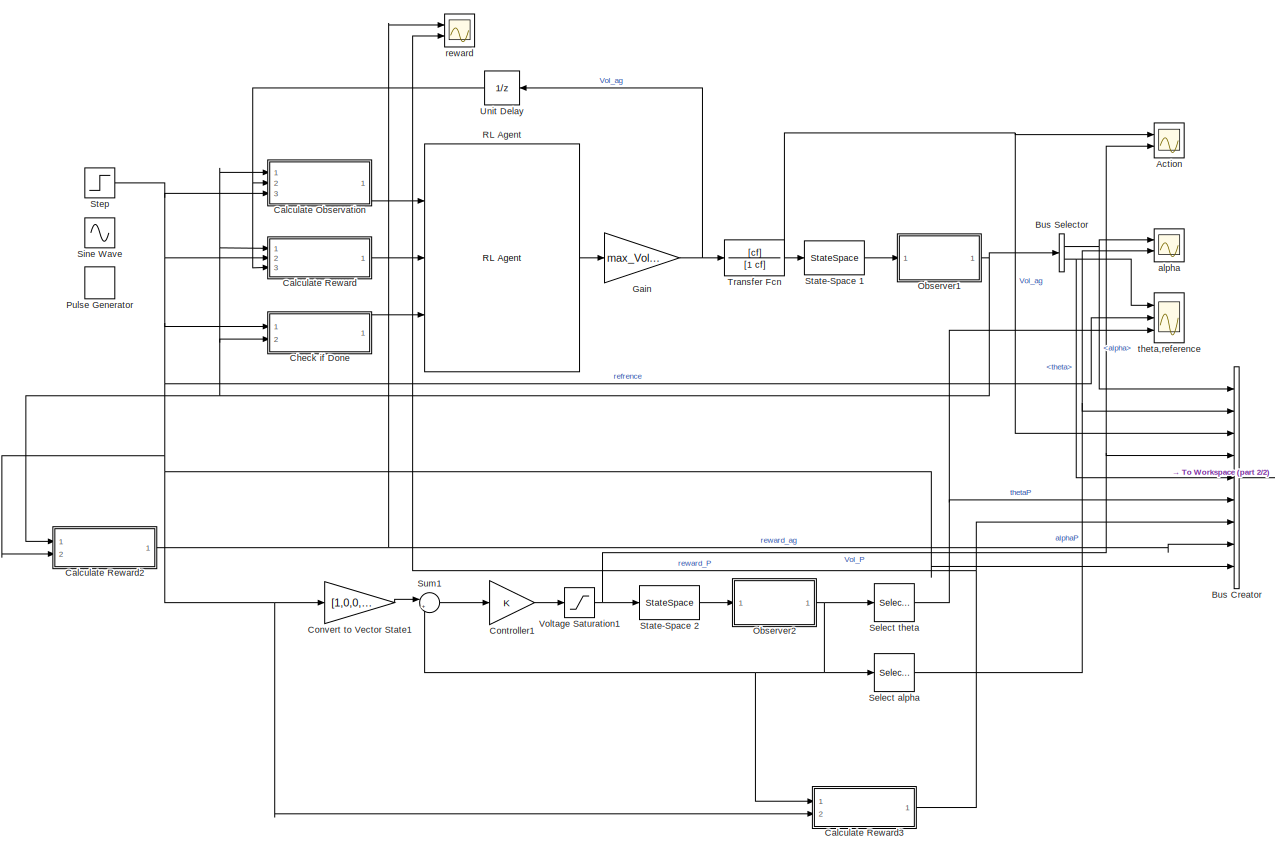
[diagram: root canvas - part 1/2, most of the canvas]
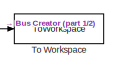
[diagram: root canvas - part 2/2, middle right region]
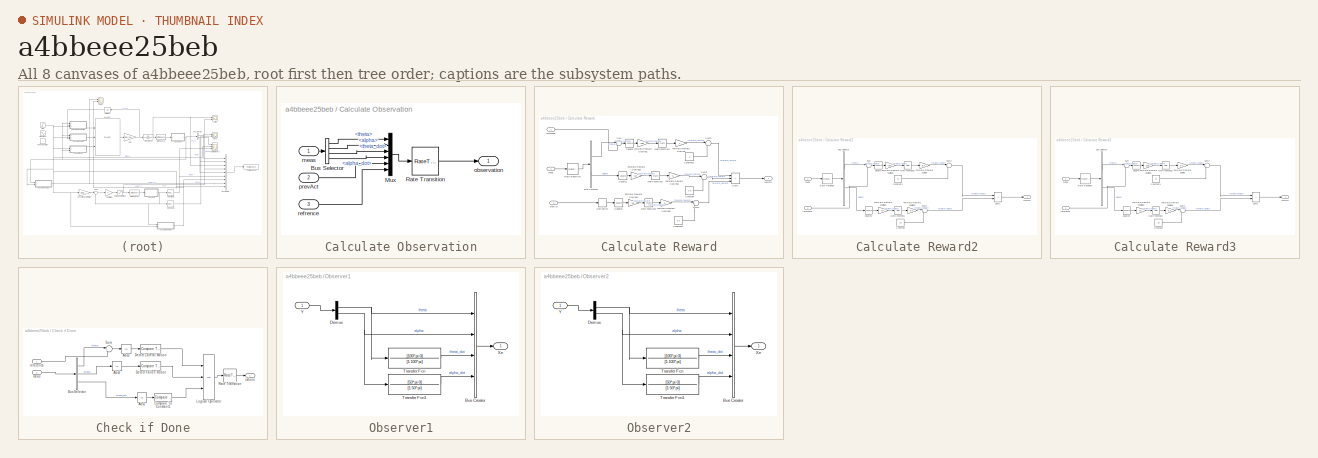
[diagram: thumbnail index - all 8 canvases of the model, root first then tree order]
MODEL slx_a4bbeee25beb
KIND model
CONFIG AbsTol = auto
CONFIG EnableMultiTasking = off
CONFIG FixedStep = auto
CONFIG MaxStep = auto
CONFIG MinStep = auto
CONFIG RelTol = 1e-3
CONFIG SampleTimeConstraint = Unconstrained
CONFIG SolverName = VariableStepAuto
CONFIG StartTime = 0.0
CONFIG StopTime = 10
BLOCK [Scope] Action
  Floating = off
  NumInputPorts = 2
  Ports = [2]
  ScopeSpecificationString = Simulink.scopes.TimeScopeBlockCfg('CurrentConfiguration', extmgr.ConfigurationSet(extmgr.Configuration('Core','General UI',true),extmgr.Configuration('Core','Source UI',true),extmgr.Configuration('Sources','WiredSimulink',true,'DataLoggingVariableName','ScopeData1'),extmgr.Configuration('Visuals','Time Domain',true,'SerializedDisplays',{struct('MinYLimReal','-6.831','MaxYLimReal','10.53028','YLabe...<+1444ch>
BLOCK [BusCreator] Bus Creator
  DisplayOption = bar
  InheritFromInputs = on
  Inputs = 9
  Ports = [9, 1]
BLOCK [BusSelector] Bus Selector
  OutputSignals = alpha,theta
  Ports = [1, 2]
BLOCK [SubSystem] Calculate Observation
  Ports = [3, 1]
  RequestExecContextInheritance = off
BLOCK [BusSelector] Calculate Observation/Bus Selector
  OutputSignals = theta,alpha,theta_dot,alpha_dot
  Ports = [1, 4]
BLOCK [Mux] Calculate Observation/Mux
  DisplayOption = bar
  Inputs = 6
  Ports = [6, 1]
BLOCK [RateTransition] Calculate Observation/Rate Transition
BLOCK [Inport] Calculate Observation/meas
BLOCK [Outport] Calculate Observation/observation
  VectorParamsAs1DForOutWhenUnconnected = off
BLOCK [Inport] Calculate Observation/prevAct
  Port = 2
BLOCK [Inport] Calculate Observation/refrence
  Port = 3
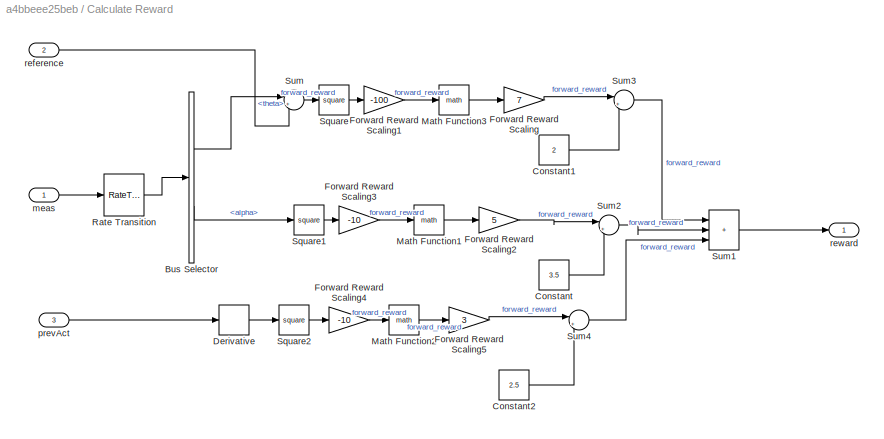
BLOCK [SubSystem] Calculate Reward
  Ports = [3, 1]
  RequestExecContextInheritance = off
BLOCK [BusSelector] Calculate Reward/Bus Selector
  OutputSignals = theta,alpha
  Ports = [1, 2]
BLOCK [Constant] Calculate Reward/Constant
  Value = 3.5
BLOCK [Constant] Calculate Reward/Constant1
  Value = 2
BLOCK [Constant] Calculate Reward/Constant2
  Value = 2.5
BLOCK [Derivative] Calculate Reward/Derivative
BLOCK [Gain] Calculate Reward/Forward Reward Scaling
  Gain = 7
BLOCK [Gain] Calculate Reward/Forward Reward Scaling1
  Gain = -100
BLOCK [Gain] Calculate Reward/Forward Reward Scaling2
  Gain = 5
BLOCK [Gain] Calculate Reward/Forward Reward Scaling3
  Gain = -10
BLOCK [Gain] Calculate Reward/Forward Reward Scaling4
  Gain = -10
BLOCK [Gain] Calculate Reward/Forward Reward Scaling5
  Gain = 3
BLOCK [Math] Calculate Reward/Math Function1
  Ports = [1, 1]
BLOCK [Math] Calculate Reward/Math Function2
  Ports = [1, 1]
BLOCK [Math] Calculate Reward/Math Function3
  Ports = [1, 1]
BLOCK [RateTransition] Calculate Reward/Rate Transition
  OutPortSampleTime = Ts
BLOCK [Math] Calculate Reward/Square
  Operator = square
  Ports = [1, 1]
BLOCK [Math] Calculate Reward/Square1
  Operator = square
  Ports = [1, 1]
BLOCK [Math] Calculate Reward/Square2
  Operator = square
  Ports = [1, 1]
BLOCK [Sum] Calculate Reward/Sum
  Inputs = |+-
  Ports = [2, 1]
BLOCK [Sum] Calculate Reward/Sum1
  IconShape = rectangular
  Inputs = |+++
  Ports = [3, 1]
BLOCK [Sum] Calculate Reward/Sum2
  Inputs = |+-
  Ports = [2, 1]
BLOCK [Sum] Calculate Reward/Sum3
  Inputs = |+-
  Ports = [2, 1]
BLOCK [Sum] Calculate Reward/Sum4
  Inputs = |+-
  Ports = [2, 1]
BLOCK [Inport] Calculate Reward/meas
BLOCK [Inport] Calculate Reward/prevAct
  Port = 3
BLOCK [Inport] Calculate Reward/reference
  Port = 2
BLOCK [Outport] Calculate Reward/reward
  VectorParamsAs1DForOutWhenUnconnected = off
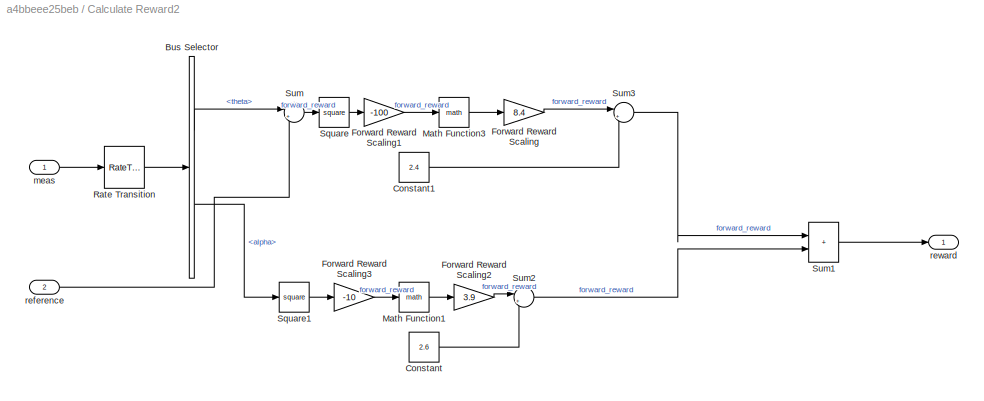
BLOCK [SubSystem] Calculate Reward2
  Ports = [2, 1]
  RequestExecContextInheritance = off
BLOCK [BusSelector] Calculate Reward2/Bus Selector
  OutputSignals = theta,alpha
  Ports = [1, 2]
BLOCK [Constant] Calculate Reward2/Constant
  Value = 2.6
BLOCK [Constant] Calculate Reward2/Constant1
  Value = 2.4
BLOCK [Gain] Calculate Reward2/Forward Reward Scaling
  Gain = 8.4
BLOCK [Gain] Calculate Reward2/Forward Reward Scaling1
  Gain = -100
BLOCK [Gain] Calculate Reward2/Forward Reward Scaling2
  Gain = 3.9
BLOCK [Gain] Calculate Reward2/Forward Reward Scaling3
  Gain = -10
BLOCK [Math] Calculate Reward2/Math Function1
  Ports = [1, 1]
BLOCK [Math] Calculate Reward2/Math Function3
  Ports = [1, 1]
BLOCK [RateTransition] Calculate Reward2/Rate Transition
  OutPortSampleTime = Ts
BLOCK [Math] Calculate Reward2/Square
  Operator = square
  Ports = [1, 1]
BLOCK [Math] Calculate Reward2/Square1
  Operator = square
  Ports = [1, 1]
BLOCK [Sum] Calculate Reward2/Sum
  Inputs = |+-
  Ports = [2, 1]
BLOCK [Sum] Calculate Reward2/Sum1
  IconShape = rectangular
  Inputs = |++
  Ports = [2, 1]
BLOCK [Sum] Calculate Reward2/Sum2
  Inputs = |+-
  Ports = [2, 1]
BLOCK [Sum] Calculate Reward2/Sum3
  Inputs = |+-
  Ports = [2, 1]
BLOCK [Inport] Calculate Reward2/meas
BLOCK [Inport] Calculate Reward2/reference
  Port = 2
BLOCK [Outport] Calculate Reward2/reward
  VectorParamsAs1DForOutWhenUnconnected = off
BLOCK [SubSystem] Calculate Reward3
  Ports = [2, 1]
  RequestExecContextInheritance = off
BLOCK [BusSelector] Calculate Reward3/Bus Selector
  OutputSignals = theta,alpha
  Ports = [1, 2]
BLOCK [Constant] Calculate Reward3/Constant
  Value = 2.6
BLOCK [Constant] Calculate Reward3/Constant1
  Value = 2.4
BLOCK [Gain] Calculate Reward3/Forward Reward Scaling
  Gain = 8.4
BLOCK [Gain] Calculate Reward3/Forward Reward Scaling1
  Gain = -100
BLOCK [Gain] Calculate Reward3/Forward Reward Scaling2
  Gain = 3.9
BLOCK [Gain] Calculate Reward3/Forward Reward Scaling3
  Gain = -10
BLOCK [Math] Calculate Reward3/Math Function1
  Ports = [1, 1]
BLOCK [Math] Calculate Reward3/Math Function3
  Ports = [1, 1]
BLOCK [RateTransition] Calculate Reward3/Rate Transition
  OutPortSampleTime = Ts
BLOCK [Math] Calculate Reward3/Square
  Operator = square
  Ports = [1, 1]
BLOCK [Math] Calculate Reward3/Square1
  Operator = square
  Ports = [1, 1]
BLOCK [Sum] Calculate Reward3/Sum
  Inputs = |+-
  Ports = [2, 1]
BLOCK [Sum] Calculate Reward3/Sum1
  IconShape = rectangular
  Inputs = |++
  Ports = [2, 1]
BLOCK [Sum] Calculate Reward3/Sum2
  Inputs = |+-
  Ports = [2, 1]
BLOCK [Sum] Calculate Reward3/Sum3
  Inputs = |+-
  Ports = [2, 1]
BLOCK [Inport] Calculate Reward3/meas
BLOCK [Inport] Calculate Reward3/reference
  Port = 2
BLOCK [Outport] Calculate Reward3/reward
  VectorParamsAs1DForOutWhenUnconnected = off
BLOCK [SubSystem] Check if Done
  Ports = [2, 1]
  RequestExecContextInheritance = off
BLOCK [Abs] Check if Done/Abs1
  SaturateOnIntegerOverflow = off
BLOCK [Abs] Check if Done/Abs2
  SaturateOnIntegerOverflow = off
BLOCK [Abs] Check if Done/Abs3
  SaturateOnIntegerOverflow = off
BLOCK [BusSelector] Check if Done/Bus Selector
  OutputSignals = theta,alpha,alpha_dot
  Ports = [1, 3]
BLOCK [Reference] Check if Done/Compare To Constant1  REF=simulink/Logic and Bit
Operations/Compare
To Constant
  Ports = [1, 1]
  SourceBlock = simulink/Logic and Bit\nOperations/Compare\nTo Constant
  SourceProductBaseCode = SL
  SourceType = Compare To Constant
BLOCK [Reference] Check if Done/Detect Fallen Robot  REF=simulink/Logic and Bit
Operations/Compare
To Constant
  Ports = [1, 1]
  SourceBlock = simulink/Logic and Bit\nOperations/Compare\nTo Constant
  SourceProductBaseCode = SL
  SourceType = Compare To Constant
BLOCK [Reference] Check if Done/Detect Lateral Motion  REF=simulink/Logic and Bit
Operations/Compare
To Constant
  Ports = [1, 1]
  SourceBlock = simulink/Logic and Bit\nOperations/Compare\nTo Constant
  SourceProductBaseCode = SL
  SourceType = Compare To Constant
BLOCK [Logic] Check if Done/Logical Operator
  AllPortsSameDT = off
  Inputs = 3
  Operator = OR
  OutDataTypeStr = boolean
  Ports = [3, 1]
BLOCK [RateTransition] Check if Done/Rate Transition
BLOCK [Sum] Check if Done/Sum
  Inputs = |+-
  Ports = [2, 1]
BLOCK [Outport] Check if Done/isdone
  VectorParamsAs1DForOutWhenUnconnected = off
BLOCK [Inport] Check if Done/meas
  Port = 2
BLOCK [Inport] Check if Done/reference
BLOCK [Gain] Controller1
  Gain = K
  Multiplication = Matrix(K*u)
  OutDataTypeStr = Inherit: Same as input
  ParamDataTypeStr = Inherit: Same as input
  SaturateOnIntegerOverflow = on
BLOCK [Gain] Convert to Vector State1
  Gain = [1,0,0,0]
BLOCK [Gain] Gain
  Gain = max_Voltage
BLOCK [SubSystem] Observer1
  Ports = [1, 1]
  RequestExecContextInheritance = off
BLOCK [BusCreator] Observer1/Bus Creator
  DisplayOption = bar
  InheritFromInputs = on
  Inputs = 4
  Ports = [4, 1]
BLOCK [Demux] Observer1/Demux
  Outputs = 2
  Ports = [1, 2]
BLOCK [TransferFcn] Observer1/Transfer Fcn
  Denominator = [1 100*pi]
  Numerator = [100*pi 0]
BLOCK [TransferFcn] Observer1/Transfer Fcn1
  Denominator = [1 50*pi]
  Numerator = [50*pi 0]
BLOCK [Outport] Observer1/Xe
BLOCK [Inport] Observer1/Y
BLOCK [SubSystem] Observer2
  Ports = [1, 1]
  RequestExecContextInheritance = off
BLOCK [BusCreator] Observer2/Bus Creator
  DisplayOption = bar
  InheritFromInputs = on
  Inputs = 4
  Ports = [4, 1]
BLOCK [Demux] Observer2/Demux
  Outputs = 2
  Ports = [1, 2]
BLOCK [TransferFcn] Observer2/Transfer Fcn
  Denominator = [1 100*pi]
  Numerator = [100*pi 0]
BLOCK [TransferFcn] Observer2/Transfer Fcn1
  Denominator = [1 50*pi]
  Numerator = [50*pi 0]
BLOCK [Outport] Observer2/Xe
BLOCK [Inport] Observer2/Y
BLOCK [DiscretePulseGenerator] Pulse Generator
  Period = 10
  Ports = [0, 1]
  PulseType = Time based
  PulseWidth = 50
BLOCK [Reference] RL Agent  REF=rllib/RL Agent
  Ports = [3, 1]
  SourceBlock = rllib/RL Agent
  SourceProductBaseCode = RL
  SourceType = RL Agent
BLOCK [Selector] Select alpha
  IndexOptions = Index vector (dialog)
  Indices = [2]
  InputPortWidth = 4
  OutputSizes = 1
  Ports = [1, 1]
BLOCK [Selector] Select theta
  IndexOptions = Index vector (dialog)
  Indices = [1]
  InputPortWidth = 4
  OutputSizes = 1
  Ports = [1, 1]
BLOCK [Sin] Sine Wave
  Frequency = pi
  Ports = [0, 1]
  SampleTime = 0
BLOCK [StateSpace] State-Space 1
  A = A
  B = B
  C = C
  D = D
  InitialCondition = 0
  Ports = [1, 1]
BLOCK [StateSpace] State-Space 2
  A = A
  B = B
  C = C
  D = D
  InitialCondition = 0
  Ports = [1, 1]
BLOCK [Step] Step
  SampleTime = 0
BLOCK [Sum] Sum1
  Inputs = |+-
  Ports = [2, 1]
BLOCK [ToWorkspace] To Workspace
  FixptAsFi = on
  MaxDataPoints = inf
  Ports = [1]
  SampleTime = -1
  SaveFormat = Timeseries
  VariableName = simout
BLOCK [TransferFcn] Transfer Fcn
  Denominator = [1 cf]
  Numerator = [cf]
BLOCK [UnitDelay] Unit Delay
  HasFrameUpgradeWarning = on
  NameLocation = top
  SampleTime = -1
BLOCK [Saturate] Voltage Saturation1
  LowerLimit = -10
  UpperLimit = 10
BLOCK [Scope] alpha
  Floating = off
  NumInputPorts = 2
  Ports = [2]
  ScopeSpecificationString = Simulink.scopes.TimeScopeBlockCfg('CurrentConfiguration', extmgr.ConfigurationSet(extmgr.Configuration('Core','General UI',true),extmgr.Configuration('Core','Source UI',true),extmgr.Configuration('Sources','WiredSimulink',true,'DataLoggingVariableName','ScopeData1'),extmgr.Configuration('Visuals','Time Domain',true,'SerializedDisplays',{struct('MinYLimReal','-0.98488','MaxYLimReal','0.99765','YLab...<+1647ch>
BLOCK [Scope] reward
  Floating = off
  NumInputPorts = 2
  Ports = [2]
  ScopeSpecificationString = Simulink.scopes.TimeScopeBlockCfg('CurrentConfiguration', extmgr.ConfigurationSet(extmgr.Configuration('Core','General UI',true),extmgr.Configuration('Core','Source UI',true),extmgr.Configuration('Sources','WiredSimulink',true,'DataLoggingVariableName','ScopeData1'),extmgr.Configuration('Visuals','Time Domain',true,'SerializedDisplays',{struct('MinYLimReal','-5.16873','MaxYLimReal','8.68541','YLab...<+1461ch>
BLOCK [Scope] theta,reference
  Floating = off
  NumInputPorts = 3
  Ports = [3]
  ScopeSpecificationString = Simulink.scopes.TimeScopeBlockCfg('CurrentConfiguration', extmgr.ConfigurationSet(extmgr.Configuration('Core','General UI',true),extmgr.Configuration('Core','Source UI',true),extmgr.Configuration('Sources','WiredSimulink',true,'DataLoggingVariableName','ScopeData1'),extmgr.Configuration('Visuals','Time Domain',true,'SerializedDisplays',{struct('MinYLimReal','-1.55012','MaxYLimReal','1.28335','YLab...<+1483ch>
LINE Bus Creator:1 -> To Workspace:1
NET Bus Selector:1 -> Bus Creator:1, alpha:1
NET Bus Selector:2 -> Bus Creator:5, theta,reference:1
LINE Calculate Observation/Bus Selector:1 -> Calculate Observation/Mux:1
LINE Calculate Observation/Bus Selector:2 -> Calculate Observation/Mux:2
LINE Calculate Observation/Bus Selector:3 -> Calculate Observation/Mux:3
LINE Calculate Observation/Bus Selector:4 -> Calculate Observation/Mux:4
LINE Calculate Observation/Mux:1 -> Calculate Observation/Rate Transition:1
LINE Calculate Observation/Rate Transition:1 -> Calculate Observation/observation:1
LINE Calculate Observation/meas:1 -> Calculate Observation/Bus Selector:1
LINE Calculate Observation/prevAct:1 -> Calculate Observation/Mux:5
LINE Calculate Observation/refrence:1 -> Calculate Observation/Mux:6
LINE Calculate Observation:1 -> RL Agent:1
LINE Calculate Reward/Bus Selector:1 -> Calculate Reward/Sum:1
LINE Calculate Reward/Bus Selector:2 -> Calculate Reward/Square1:1
LINE Calculate Reward/Constant1:1 -> Calculate Reward/Sum3:2
LINE Calculate Reward/Constant2:1 -> Calculate Reward/Sum4:2
LINE Calculate Reward/Constant:1 -> Calculate Reward/Sum2:2
LINE Calculate Reward/Derivative:1 -> Calculate Reward/Square2:1
LINE Calculate Reward/Forward Reward Scaling1:1 -> Calculate Reward/Math Function3:1
LINE Calculate Reward/Forward Reward Scaling2:1 -> Calculate Reward/Sum2:1
LINE Calculate Reward/Forward Reward Scaling3:1 -> Calculate Reward/Math Function1:1
LINE Calculate Reward/Forward Reward Scaling4:1 -> Calculate Reward/Math Function2:1
LINE Calculate Reward/Forward Reward Scaling5:1 -> Calculate Reward/Sum4:1
LINE Calculate Reward/Forward Reward Scaling:1 -> Calculate Reward/Sum3:1
LINE Calculate Reward/Math Function1:1 -> Calculate Reward/Forward Reward Scaling2:1
LINE Calculate Reward/Math Function2:1 -> Calculate Reward/Forward Reward Scaling5:1
LINE Calculate Reward/Math Function3:1 -> Calculate Reward/Forward Reward Scaling:1
LINE Calculate Reward/Rate Transition:1 -> Calculate Reward/Bus Selector:1
LINE Calculate Reward/Square1:1 -> Calculate Reward/Forward Reward Scaling3:1
LINE Calculate Reward/Square2:1 -> Calculate Reward/Forward Reward Scaling4:1
LINE Calculate Reward/Square:1 -> Calculate Reward/Forward Reward Scaling1:1
LINE Calculate Reward/Sum1:1 -> Calculate Reward/reward:1
LINE Calculate Reward/Sum2:1 -> Calculate Reward/Sum1:2
LINE Calculate Reward/Sum3:1 -> Calculate Reward/Sum1:1
LINE Calculate Reward/Sum4:1 -> Calculate Reward/Sum1:3
LINE Calculate Reward/Sum:1 -> Calculate Reward/Square:1
LINE Calculate Reward/meas:1 -> Calculate Reward/Rate Transition:1
LINE Calculate Reward/prevAct:1 -> Calculate Reward/Derivative:1
LINE Calculate Reward/reference:1 -> Calculate Reward/Sum:2
LINE Calculate Reward2/Bus Selector:1 -> Calculate Reward2/Sum:1
LINE Calculate Reward2/Bus Selector:2 -> Calculate Reward2/Square1:1
LINE Calculate Reward2/Constant1:1 -> Calculate Reward2/Sum3:2
LINE Calculate Reward2/Constant:1 -> Calculate Reward2/Sum2:2
LINE Calculate Reward2/Forward Reward Scaling1:1 -> Calculate Reward2/Math Function3:1
LINE Calculate Reward2/Forward Reward Scaling2:1 -> Calculate Reward2/Sum2:1
LINE Calculate Reward2/Forward Reward Scaling3:1 -> Calculate Reward2/Math Function1:1
LINE Calculate Reward2/Forward Reward Scaling:1 -> Calculate Reward2/Sum3:1
LINE Calculate Reward2/Math Function1:1 -> Calculate Reward2/Forward Reward Scaling2:1
LINE Calculate Reward2/Math Function3:1 -> Calculate Reward2/Forward Reward Scaling:1
LINE Calculate Reward2/Rate Transition:1 -> Calculate Reward2/Bus Selector:1
LINE Calculate Reward2/Square1:1 -> Calculate Reward2/Forward Reward Scaling3:1
LINE Calculate Reward2/Square:1 -> Calculate Reward2/Forward Reward Scaling1:1
LINE Calculate Reward2/Sum1:1 -> Calculate Reward2/reward:1
LINE Calculate Reward2/Sum2:1 -> Calculate Reward2/Sum1:2
LINE Calculate Reward2/Sum3:1 -> Calculate Reward2/Sum1:1
LINE Calculate Reward2/Sum:1 -> Calculate Reward2/Square:1
LINE Calculate Reward2/meas:1 -> Calculate Reward2/Rate Transition:1
LINE Calculate Reward2/reference:1 -> Calculate Reward2/Sum:2
NET Calculate Reward2:1 -> Bus Creator:8, reward:1
LINE Calculate Reward3/Bus Selector:1 -> Calculate Reward3/Sum:1
LINE Calculate Reward3/Bus Selector:2 -> Calculate Reward3/Square1:1
LINE Calculate Reward3/Constant1:1 -> Calculate Reward3/Sum3:2
LINE Calculate Reward3/Constant:1 -> Calculate Reward3/Sum2:2
LINE Calculate Reward3/Forward Reward Scaling1:1 -> Calculate Reward3/Math Function3:1
LINE Calculate Reward3/Forward Reward Scaling2:1 -> Calculate Reward3/Sum2:1
LINE Calculate Reward3/Forward Reward Scaling3:1 -> Calculate Reward3/Math Function1:1
LINE Calculate Reward3/Forward Reward Scaling:1 -> Calculate Reward3/Sum3:1
LINE Calculate Reward3/Math Function1:1 -> Calculate Reward3/Forward Reward Scaling2:1
LINE Calculate Reward3/Math Function3:1 -> Calculate Reward3/Forward Reward Scaling:1
LINE Calculate Reward3/Rate Transition:1 -> Calculate Reward3/Bus Selector:1
LINE Calculate Reward3/Square1:1 -> Calculate Reward3/Forward Reward Scaling3:1
LINE Calculate Reward3/Square:1 -> Calculate Reward3/Forward Reward Scaling1:1
LINE Calculate Reward3/Sum1:1 -> Calculate Reward3/reward:1
LINE Calculate Reward3/Sum2:1 -> Calculate Reward3/Sum1:2
LINE Calculate Reward3/Sum3:1 -> Calculate Reward3/Sum1:1
LINE Calculate Reward3/Sum:1 -> Calculate Reward3/Square:1
LINE Calculate Reward3/meas:1 -> Calculate Reward3/Rate Transition:1
LINE Calculate Reward3/reference:1 -> Calculate Reward3/Sum:2
NET Calculate Reward3:1 -> Bus Creator:7, reward:2
LINE Calculate Reward:1 -> RL Agent:2
LINE Check if Done/Abs1:1 -> Check if Done/Compare To Constant1:1
LINE Check if Done/Abs2:1 -> Check if Done/Detect Fallen Robot:1
LINE Check if Done/Abs3:1 -> Check if Done/Detect Lateral Motion:1
LINE Check if Done/Bus Selector:1 -> Check if Done/Sum:1
LINE Check if Done/Bus Selector:2 -> Check if Done/Abs2:1
LINE Check if Done/Bus Selector:3 -> Check if Done/Abs1:1
LINE Check if Done/Compare To Constant1:1 -> Check if Done/Logical Operator:3
LINE Check if Done/Detect Fallen Robot:1 -> Check if Done/Logical Operator:2
LINE Check if Done/Detect Lateral Motion:1 -> Check if Done/Logical Operator:1
LINE Check if Done/Logical Operator:1 -> Check if Done/Rate Transition:1
LINE Check if Done/Rate Transition:1 -> Check if Done/isdone:1
LINE Check if Done/Sum:1 -> Check if Done/Abs3:1
LINE Check if Done/meas:1 -> Check if Done/Bus Selector:1
LINE Check if Done/reference:1 -> Check if Done/Sum:2
LINE Check if Done:1 -> RL Agent:3
LINE Controller1:1 -> Voltage Saturation1:1
LINE Convert to Vector State1:1 -> Sum1:1
NET Gain:1 -> Transfer Fcn:1, Unit Delay:1
LINE Observer1/Bus Creator:1 -> Observer1/Xe:1
NET Observer1/Demux:1 -> Observer1/Bus Creator:1, Observer1/Transfer Fcn:1
NET Observer1/Demux:2 -> Observer1/Bus Creator:2, Observer1/Transfer Fcn1:1
LINE Observer1/Transfer Fcn1:1 -> Observer1/Bus Creator:4
LINE Observer1/Transfer Fcn:1 -> Observer1/Bus Creator:3
LINE Observer1/Y:1 -> Observer1/Demux:1
NET Observer1:1 -> Bus Selector:1, Calculate Observation:1, Calculate Reward2:1, Calculate Reward:1, Check if Done:2
LINE Observer2/Bus Creator:1 -> Observer2/Xe:1
NET Observer2/Demux:1 -> Observer2/Bus Creator:1, Observer2/Transfer Fcn:1
NET Observer2/Demux:2 -> Observer2/Bus Creator:2, Observer2/Transfer Fcn1:1
LINE Observer2/Transfer Fcn1:1 -> Observer2/Bus Creator:4
LINE Observer2/Transfer Fcn:1 -> Observer2/Bus Creator:3
LINE Observer2/Y:1 -> Observer2/Demux:1
NET Observer2:1 -> Calculate Reward3:1, Select alpha:1, Select theta:1, Sum1:2
LINE RL Agent:1 -> Gain:1
NET Select alpha:1 -> Bus Creator:2, alpha:2
NET Select theta:1 -> Bus Creator:6, theta,reference:3
LINE State-Space 1:1 -> Observer1:1
LINE State-Space 2:1 -> Observer2:1
NET Step:1 -> Bus Creator:9, Calculate Observation:3, Calculate Reward2:2, Calculate Reward3:2, Calculate Reward:2, Check if Done:1, Convert to Vector State1:1, theta,reference:2
LINE Sum1:1 -> Controller1:1
NET Transfer Fcn:1 -> Action:1, Bus Creator:3, State-Space 1:1
NET Unit Delay:1 -> Calculate Observation:2, Calculate Reward:3
NET Voltage Saturation1:1 -> Action:2, Bus Creator:4, State-Space 2:1
note: NET lines group one-source signal fan-out (src -> all destinations, sorted); 1:1 wires keep LINE
